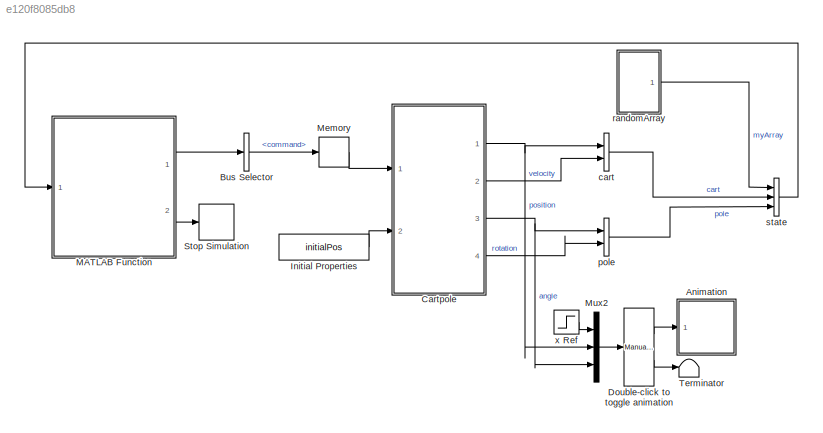
MODEL slx_e120f8085db8
KIND model
CONFIG AbsTol = auto
CONFIG EnableMultiTasking = off
CONFIG FixedStep = auto
CONFIG MaxStep = 1e-2
CONFIG MinStep = auto
CONFIG RelTol = 1e-3
CONFIG SampleTimeConstraint = Unconstrained
CONFIG Solver = FixedStepAuto
CONFIG SolverName = FixedStepAuto
CONFIG StartTime = 0.0
CONFIG StopTime = 10000
WORKSPACE source: MATLAB code (in-file)
WORKSPACE mCart = 1
WORKSPACE mPend = 1
WORKSPACE g = 9.81
WORKSPACE L = 0.5
WORKSPACE theta0 = 0
WORKSPACE Kd = 10
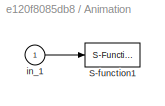
BLOCK [SubSystem] Animation
  NameLocation = top
  Ports = [1]
  RequestExecContextInheritance = off
BLOCK [S-Function] Animation/S-function1
  DeleteFcn = pendcartAnimation([],[],[],'DeleteBlock');
  EnableBusSupport = off
  FunctionName = pendcartAnimation
  Parameters = RefBlock
  Ports = [1]
  SFcnIsStateOwnerBlock = off
  SFunctionDeploymentMode = off
BLOCK [Inport] Animation/in_1
BLOCK [BusSelector] Bus Selector
  OutputSignals = command
  Ports = [1, 1]
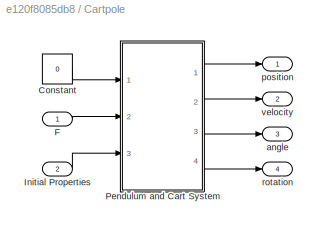
BLOCK [SubSystem] Cartpole
  NameLocation = top
  Ports = [2, 4]
  RequestExecContextInheritance = off
  TreatAsAtomicUnit = on
BLOCK [Constant] Cartpole/Constant
  Value = 0
BLOCK [Inport] Cartpole/F
BLOCK [Inport] Cartpole/Initial Properties
  Port = 2
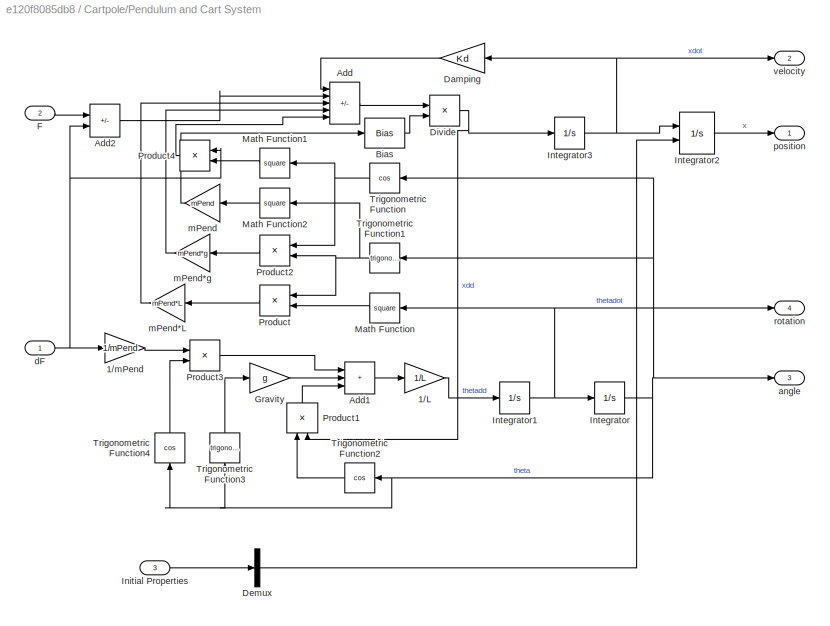
BLOCK [SubSystem] Cartpole/Pendulum and Cart System
  Ports = [3, 4]
  RequestExecContextInheritance = off
BLOCK [Gain] Cartpole/Pendulum and Cart System/1//L
  Gain = 1/L
BLOCK [Gain] Cartpole/Pendulum and Cart System/1//mPend
  Gain = 1/mPend
  NameLocation = top
BLOCK [Sum] Cartpole/Pendulum and Cart System/Add
  IconShape = rectangular
  Inputs = -+-++
  Ports = [5, 1]
BLOCK [Sum] Cartpole/Pendulum and Cart System/Add1
  IconShape = rectangular
  Inputs = +++
  Ports = [3, 1]
BLOCK [Sum] Cartpole/Pendulum and Cart System/Add2
  IconShape = rectangular
  Inputs = +-
  Ports = [2, 1]
BLOCK [Bias] Cartpole/Pendulum and Cart System/Bias
  Bias = mCart
  SaturateOnIntegerOverflow = off
BLOCK [Gain] Cartpole/Pendulum and Cart System/Damping
  Gain = Kd
  NameLocation = top
BLOCK [Demux] Cartpole/Pendulum and Cart System/Demux
  Outputs = 1
  Ports = [1, 1]
BLOCK [Product] Cartpole/Pendulum and Cart System/Divide
  Inputs = */
  Ports = [2, 1]
BLOCK [Inport] Cartpole/Pendulum and Cart System/F
  Port = 2
BLOCK [Gain] Cartpole/Pendulum and Cart System/Gravity
  Gain = g
BLOCK [Inport] Cartpole/Pendulum and Cart System/Initial Properties
  Port = 3
BLOCK [Integrator] Cartpole/Pendulum and Cart System/Integrator
  Ports = [1, 1]
BLOCK [Integrator] Cartpole/Pendulum and Cart System/Integrator1
  Ports = [1, 1]
BLOCK [Integrator] Cartpole/Pendulum and Cart System/Integrator2
  InitialCondition = initialPos
  InitialConditionSource = external
  Ports = [2, 1]
BLOCK [Integrator] Cartpole/Pendulum and Cart System/Integrator3
  Ports = [1, 1]
BLOCK [Math] Cartpole/Pendulum and Cart System/Math Function
  Operator = square
  Ports = [1, 1]
  SignedPower = on
BLOCK [Math] Cartpole/Pendulum and Cart System/Math Function1
  Operator = square
  Ports = [1, 1]
  SignedPower = on
BLOCK [Math] Cartpole/Pendulum and Cart System/Math Function2
  Operator = square
  Ports = [1, 1]
  SignedPower = on
BLOCK [Product] Cartpole/Pendulum and Cart System/Product
  NameLocation = top
  Ports = [2, 1]
BLOCK [Product] Cartpole/Pendulum and Cart System/Product1
  NameLocation = right
  Ports = [2, 1]
BLOCK [Product] Cartpole/Pendulum and Cart System/Product2
  NameLocation = top
  Ports = [2, 1]
BLOCK [Product] Cartpole/Pendulum and Cart System/Product3
  Ports = [2, 1]
BLOCK [Product] Cartpole/Pendulum and Cart System/Product4
  NameLocation = top
  Ports = [2, 1]
BLOCK [Trigonometry] Cartpole/Pendulum and Cart System/Trigonometric Function
  NameLocation = top
  Operator = cos
  Ports = [1, 1]
BLOCK [Trigonometry] Cartpole/Pendulum and Cart System/Trigonometric Function1
  NameLocation = top
  Ports = [1, 1]
BLOCK [Trigonometry] Cartpole/Pendulum and Cart System/Trigonometric Function2
  NameLocation = top
  Operator = cos
  Ports = [1, 1]
BLOCK [Trigonometry] Cartpole/Pendulum and Cart System/Trigonometric Function3
  NameLocation = right
  Ports = [1, 1]
BLOCK [Trigonometry] Cartpole/Pendulum and Cart System/Trigonometric Function4
  NameLocation = right
  Operator = cos
  Ports = [1, 1]
BLOCK [Outport] Cartpole/Pendulum and Cart System/angle
  Port = 3
  VectorParamsAs1DForOutWhenUnconnected = off
BLOCK [Inport] Cartpole/Pendulum and Cart System/dF
BLOCK [Gain] Cartpole/Pendulum and Cart System/mPend
  Gain = mPend
BLOCK [Gain] Cartpole/Pendulum and Cart System/mPend*L
  Gain = mPend*L
BLOCK [Gain] Cartpole/Pendulum and Cart System/mPend*g
  Gain = mPend*g
BLOCK [Outport] Cartpole/Pendulum and Cart System/position
  VectorParamsAs1DForOutWhenUnconnected = off
BLOCK [Outport] Cartpole/Pendulum and Cart System/rotation
  Port = 4
  VectorParamsAs1DForOutWhenUnconnected = off
BLOCK [Outport] Cartpole/Pendulum and Cart System/velocity
  Port = 2
  VectorParamsAs1DForOutWhenUnconnected = off
BLOCK [Outport] Cartpole/angle
  Port = 3
  VectorParamsAs1DForOutWhenUnconnected = off
BLOCK [Outport] Cartpole/position
  VectorParamsAs1DForOutWhenUnconnected = off
BLOCK [Outport] Cartpole/rotation
  Port = 4
  VectorParamsAs1DForOutWhenUnconnected = off
BLOCK [Outport] Cartpole/velocity
  Port = 2
  VectorParamsAs1DForOutWhenUnconnected = off
BLOCK [Reference] Double-click to toggle animation  REF=simulink/Signal
Routing/Manual
Variant Sink
  Ports = [1, 2]
  SourceBlock = simulink/Signal\nRouting/Manual\nVariant Sink
  SourceProductBaseCode = SL
  SourceType = ManualVariantSink
BLOCK [Constant] Initial Properties
  SampleTime = 0.1
  Value = initialPos
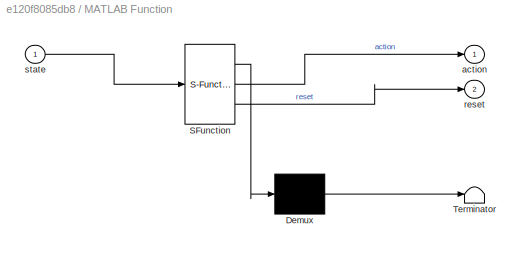
BLOCK [SubSystem] MATLAB Function
  ErrorFcn = Stateflow.Translate.translate
  PermitHierarchicalResolution = ExplicitOnly
  Ports = [1, 2]
  RequestExecContextInheritance = off
  SFBlockType = MATLAB Function
  SystemSampleTime = [-1, 0]
  TreatAsAtomicUnit = on
BLOCK [Demux] MATLAB Function/ Demux 
  Outputs = 1
  Ports = [1, 1]
BLOCK [S-Function] MATLAB Function/ SFunction 
  EnableBusSupport = on
  FunctionName = sf_sfun
  PortCounts = [1 3]
  Ports = [1, 3]
  SFcnIsStateOwnerBlock = off
  SFunctionDeploymentMode = off
  Tag = Stateflow S-Function 2
BLOCK [Terminator] MATLAB Function/ Terminator 
BLOCK [Outport] MATLAB Function/action
BLOCK [Outport] MATLAB Function/reset
  Port = 2
BLOCK [Inport] MATLAB Function/state
BLOCK [Memory] Memory
BLOCK [Mux] Mux2
  DisplayOption = bar
  Inputs = 3
  NameLocation = top
  Ports = [3, 1]
BLOCK [Stop] Stop Simulation
BLOCK [Terminator] Terminator
BLOCK [BusCreator] cart
  DisplayOption = bar
  InheritFromInputs = on
  Inputs = 2
  Ports = [2, 1]
BLOCK [BusCreator] pole
  DisplayOption = bar
  InheritFromInputs = on
  Inputs = 2
  Ports = [2, 1]
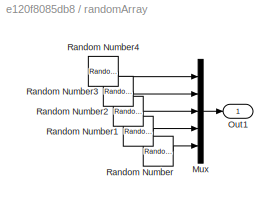
BLOCK [SubSystem] randomArray
  Ports = [0, 1]
  RequestExecContextInheritance = off
BLOCK [Mux] randomArray/Mux
  DisplayOption = bar
  Inputs = 5
  Ports = [5, 1]
BLOCK [Outport] randomArray/Out1
BLOCK [RandomNumber] randomArray/Random Number
  SampleTime = 0.1
BLOCK [RandomNumber] randomArray/Random Number1
  SampleTime = 0.1
BLOCK [RandomNumber] randomArray/Random Number2
  SampleTime = 0.1
BLOCK [RandomNumber] randomArray/Random Number3
  SampleTime = 0.1
BLOCK [RandomNumber] randomArray/Random Number4
  SampleTime = 0.1
BLOCK [BusCreator] state
  DisplayOption = bar
  InheritFromInputs = on
  Inputs = 3
  NonVirtualBus = on
  OutDataTypeStr = Bus: StateBus
  Ports = [3, 1]
BLOCK [Step] x Ref
  After = 10
  NameLocation = top
  SampleTime = 0
LINE Animation/in_1:1 -> Animation/S-function1:1
LINE Bus Selector:1 -> Memory:1
LINE Cartpole/Constant:1 -> Cartpole/Pendulum and Cart System:1
LINE Cartpole/F:1 -> Cartpole/Pendulum and Cart System:2
LINE Cartpole/Initial Properties:1 -> Cartpole/Pendulum and Cart System:3
LINE Cartpole/Pendulum and Cart System/1//L:1 -> Cartpole/Pendulum and Cart System/Integrator1:1
LINE Cartpole/Pendulum and Cart System/1//mPend:1 -> Cartpole/Pendulum and Cart System/Product3:1
LINE Cartpole/Pendulum and Cart System/Add1:1 -> Cartpole/Pendulum and Cart System/1//L:1
LINE Cartpole/Pendulum and Cart System/Add2:1 -> Cartpole/Pendulum and Cart System/Add:2
LINE Cartpole/Pendulum and Cart System/Add:1 -> Cartpole/Pendulum and Cart System/Divide:1
LINE Cartpole/Pendulum and Cart System/Bias:1 -> Cartpole/Pendulum and Cart System/Divide:2
LINE Cartpole/Pendulum and Cart System/Damping:1 -> Cartpole/Pendulum and Cart System/Add:1
LINE Cartpole/Pendulum and Cart System/Demux:1 -> Cartpole/Pendulum and Cart System/Integrator2:2
NET Cartpole/Pendulum and Cart System/Divide:1 -> Cartpole/Pendulum and Cart System/Integrator3:1, Cartpole/Pendulum and Cart System/Product1:2
LINE Cartpole/Pendulum and Cart System/F:1 -> Cartpole/Pendulum and Cart System/Add2:1
LINE Cartpole/Pendulum and Cart System/Gravity:1 -> Cartpole/Pendulum and Cart System/Add1:2
LINE Cartpole/Pendulum and Cart System/Initial Properties:1 -> Cartpole/Pendulum and Cart System/Demux:1
NET Cartpole/Pendulum and Cart System/Integrator1:1 -> Cartpole/Pendulum and Cart System/Integrator:1, Cartpole/Pendulum and Cart System/Math Function:1, Cartpole/Pendulum and Cart System/rotation:1
LINE Cartpole/Pendulum and Cart System/Integrator2:1 -> Cartpole/Pendulum and Cart System/position:1
NET Cartpole/Pendulum and Cart System/Integrator3:1 -> Cartpole/Pendulum and Cart System/Damping:1, Cartpole/Pendulum and Cart System/Integrator2:1, Cartpole/Pendulum and Cart System/velocity:1
NET Cartpole/Pendulum and Cart System/Integrator:1 -> Cartpole/Pendulum and Cart System/Trigonometric Function1:1, Cartpole/Pendulum and Cart System/Trigonometric Function2:1, Cartpole/Pendulum and Cart System/Trigonometric Function3:1, Cartpole/Pendulum and Cart System/Trigonometric Function4:1, Cartpole/Pendulum and Cart System/Trigonometric Function:1, Cartpole/Pendulum and Cart System/angle:1
LINE Cartpole/Pendulum and Cart System/Math Function1:1 -> Cartpole/Pendulum and Cart System/Product4:2
LINE Cartpole/Pendulum and Cart System/Math Function2:1 -> Cartpole/Pendulum and Cart System/mPend:1
LINE Cartpole/Pendulum and Cart System/Math Function:1 -> Cartpole/Pendulum and Cart System/Product:2
LINE Cartpole/Pendulum and Cart System/Product1:1 -> Cartpole/Pendulum and Cart System/Add1:3
LINE Cartpole/Pendulum and Cart System/Product2:1 -> Cartpole/Pendulum and Cart System/mPend*g:1
LINE Cartpole/Pendulum and Cart System/Product3:1 -> Cartpole/Pendulum and Cart System/Add1:1
LINE Cartpole/Pendulum and Cart System/Product4:1 -> Cartpole/Pendulum and Cart System/Add:5
LINE Cartpole/Pendulum and Cart System/Product:1 -> Cartpole/Pendulum and Cart System/mPend*L:1
NET Cartpole/Pendulum and Cart System/Trigonometric Function1:1 -> Cartpole/Pendulum and Cart System/Math Function2:1, Cartpole/Pendulum and Cart System/Product2:2, Cartpole/Pendulum and Cart System/Product:1
LINE Cartpole/Pendulum and Cart System/Trigonometric Function2:1 -> Cartpole/Pendulum and Cart System/Product1:1
LINE Cartpole/Pendulum and Cart System/Trigonometric Function3:1 -> Cartpole/Pendulum and Cart System/Gravity:1
LINE Cartpole/Pendulum and Cart System/Trigonometric Function4:1 -> Cartpole/Pendulum and Cart System/Product3:2
NET Cartpole/Pendulum and Cart System/Trigonometric Function:1 -> Cartpole/Pendulum and Cart System/Math Function1:1, Cartpole/Pendulum and Cart System/Product2:1
NET Cartpole/Pendulum and Cart System/dF:1 -> Cartpole/Pendulum and Cart System/1//mPend:1, Cartpole/Pendulum and Cart System/Add2:2, Cartpole/Pendulum and Cart System/Product4:1
LINE Cartpole/Pendulum and Cart System/mPend*L:1 -> Cartpole/Pendulum and Cart System/Add:3
LINE Cartpole/Pendulum and Cart System/mPend*g:1 -> Cartpole/Pendulum and Cart System/Add:4
LINE Cartpole/Pendulum and Cart System/mPend:1 -> Cartpole/Pendulum and Cart System/Bias:1
LINE Cartpole/Pendulum and Cart System:1 -> Cartpole/position:1
LINE Cartpole/Pendulum and Cart System:2 -> Cartpole/velocity:1
LINE Cartpole/Pendulum and Cart System:3 -> Cartpole/angle:1
LINE Cartpole/Pendulum and Cart System:4 -> Cartpole/rotation:1
NET Cartpole:1 -> Mux2:2, cart:1
LINE Cartpole:2 -> cart:2
NET Cartpole:3 -> Mux2:3, pole:1
LINE Cartpole:4 -> pole:2
LINE Double-click to toggle animation:1 -> Animation:1
LINE Double-click to toggle animation:2 -> Terminator:1
LINE Initial Properties:1 -> Cartpole:2
LINE MATLAB Function:1 -> Bus Selector:1
LINE MATLAB Function:2 -> Stop Simulation:1
LINE Memory:1 -> Cartpole:1
LINE Mux2:1 -> Double-click to toggle animation:1
LINE cart:1 -> state:2
LINE pole:1 -> state:3
LINE randomArray/Mux:1 -> randomArray/Out1:1
LINE randomArray/Random Number1:1 -> randomArray/Mux:4
LINE randomArray/Random Number2:1 -> randomArray/Mux:3
LINE randomArray/Random Number3:1 -> randomArray/Mux:2
LINE randomArray/Random Number4:1 -> randomArray/Mux:1
LINE randomArray/Random Number:1 -> randomArray/Mux:5
LINE randomArray:1 -> state:1
LINE state:1 -> MATLAB Function:1
LINE x Ref:1 -> Mux2:1
note: NET lines group one-source signal fan-out (src -> all destinations, sorted); 1:1 wires keep LINE
CHART MATLAB Function states=1 transitions=1
  STATE_LABEL 'eML_blk_kernel()'
  STATE_LABEL 'SCRIPT:\nfunction [action,reset] = fcn(state)\n%#codegen\n\ncoder.extrinsic("callBonsaiApi");\ncoder.extrinsic("evalin");\n\nreset=false;\n\n[action,reset] = callBonsaiApi(state);\n'
CHART  states=0 transitions=0
